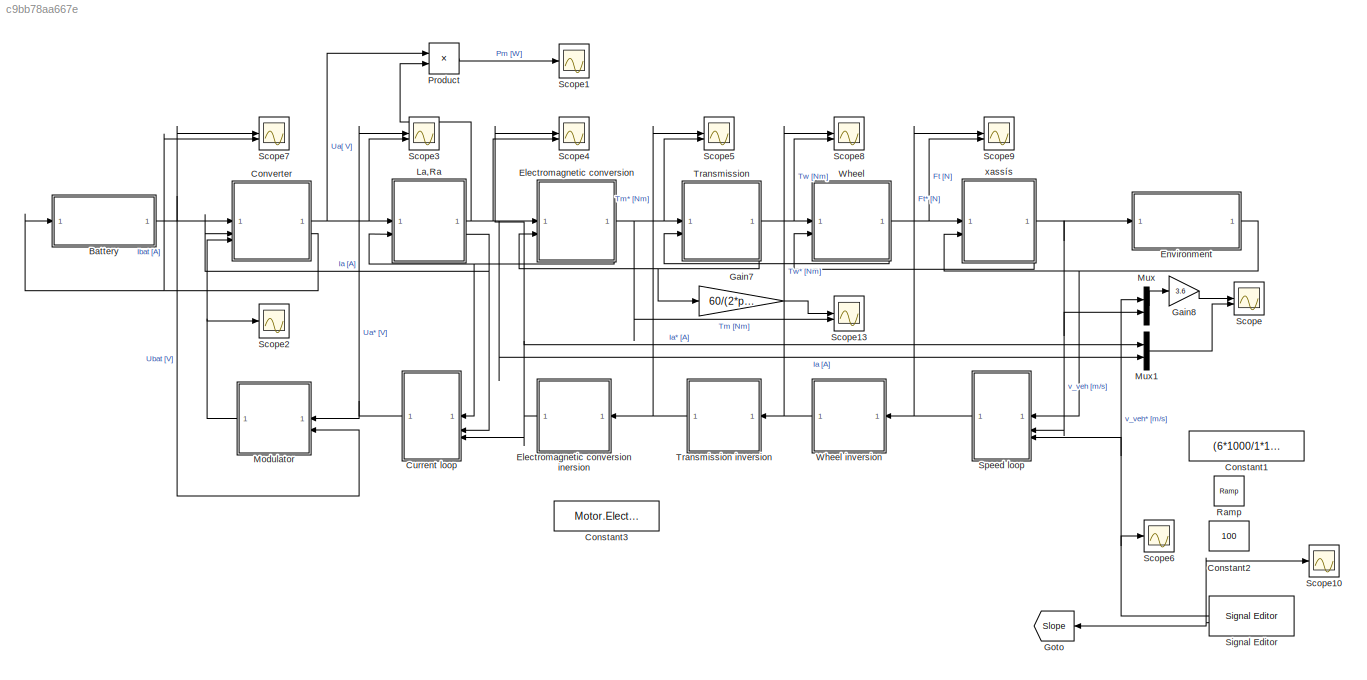
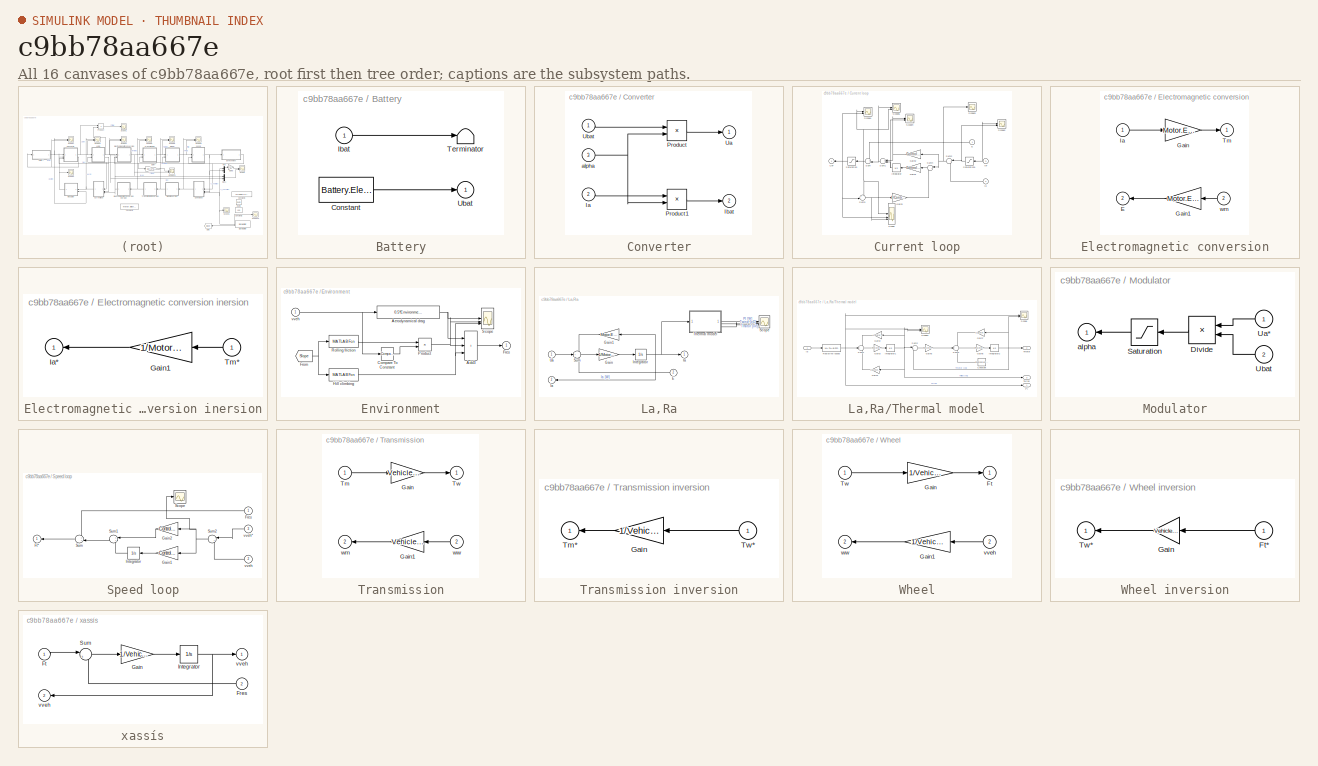
[diagram: thumbnail index - all 16 canvases of the model, root first then tree order]
MODEL mdl_c9bb78aa667e
KIND model
CONFIG AbsTol = auto
CONFIG EnableMultiTasking = on
CONFIG FixedStep = auto
CONFIG MaxStep = 1
CONFIG MinStep = auto
CONFIG RelTol = 1e-3
CONFIG SampleTimeConstraint = Unconstrained
CONFIG SolverName = ode45
CONFIG StartTime = 0.0
CONFIG StopTime = 10
BLOCK [SubSystem] Battery
  AncestorBlock = simulink/REM/SE
BLOCK [Constant] Battery/Constant
  Value = Battery.Electrical.Ubat
BLOCK [Inport] Battery/Ibat
BLOCK [Terminator] Battery/Terminator
BLOCK [Outport] Battery/Ubat
  InitialOutput = 0
  VectorParamsAs1DForOutWhenUnconnected = off
BLOCK [Constant] Constant1
  NameLocation = top
  Value = (6*1000/1*1/3600)
BLOCK [Constant] Constant2
  NameLocation = top
  Value = 100
BLOCK [Constant] Constant3
  NameLocation = top
  Value = Motor.Electrical.Imr
BLOCK [SubSystem] Converter
  AncestorBlock = simulink/REM/EC Elec
  NameLocation = top
BLOCK [Inport] Converter/Ia
  NameLocation = top
  Port = 2
BLOCK [Outport] Converter/Ibat
  InitialOutput = 0
  NameLocation = top
  Port = 2
  VectorParamsAs1DForOutWhenUnconnected = off
BLOCK [Product] Converter/Product
BLOCK [Product] Converter/Product1
BLOCK [Outport] Converter/Ua
  InitialOutput = 0
  VectorParamsAs1DForOutWhenUnconnected = off
BLOCK [Inport] Converter/Ubat
BLOCK [Inport] Converter/alpha
  Port = 3
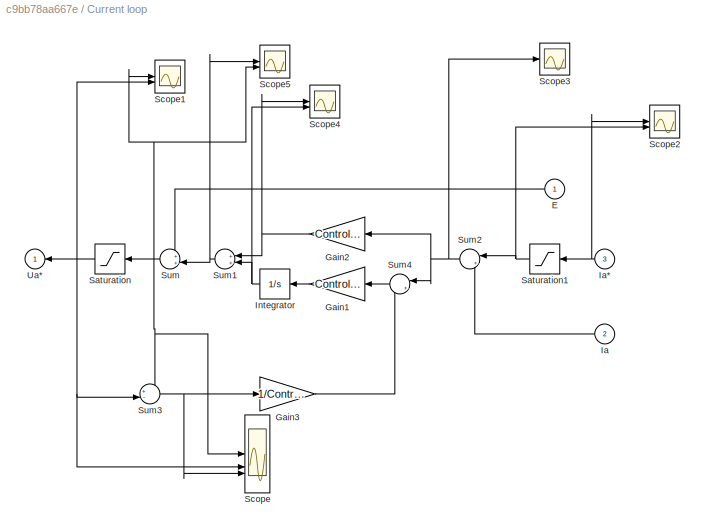
BLOCK [SubSystem] Current loop
  AncestorBlock = simulink/SMC/Asservissement\nCorrecteur IP
BLOCK [Inport] Current loop/E
  NameLocation = top
BLOCK [Gain] Current loop/Gain1
  Gain = Control.Current.Ki_i
  NameLocation = top
BLOCK [Gain] Current loop/Gain2
  Gain = Control.Current.Kp_i
  NameLocation = top
BLOCK [Gain] Current loop/Gain3
  Gain = 1/Control.Current.Kaw_i
BLOCK [Inport] Current loop/Ia
  NameLocation = top
  Port = 2
BLOCK [Inport] Current loop/Ia*
  Port = 3
BLOCK [Integrator] Current loop/Integrator
  NameLocation = top
BLOCK [Saturate] Current loop/Saturation
  LowerLimit = -Motor.Electrical.Umr
  NameLocation = top
  UpperLimit = Motor.Electrical.Umr
BLOCK [Saturate] Current loop/Saturation1
  LowerLimit = -Motor.Electrical.Imr
  NameLocation = top
  UpperLimit = Motor.Electrical.Imr
BLOCK [Scope] Current loop/Scope
  Floating = off
  NumInputPorts = 3
  ScopeSpecificationString = Simulink.scopes.TimeScopeBlockCfg('CurrentConfiguration', extmgr.ConfigurationSet(extmgr.Configuration('Core','General UI',true),extmgr.Configuration('Core','Source UI',true),extmgr.Configuration('Sources','WiredSimulink',true,'DataLoggingVariableName','ScopeData4'),extmgr.Configuration('Visuals','Time Domain',true,'SerializedDisplays',{struct('MinYLimReal','-4.53915','MaxYLimReal','40.66416','YLa...<+3112ch>
BLOCK [Scope] Current loop/Scope1
  Floating = off
  NumInputPorts = 2
  ScopeSpecificationString = Simulink.scopes.TimeScopeBlockCfg('CurrentConfiguration', extmgr.ConfigurationSet(extmgr.Configuration('Core','General UI',true),extmgr.Configuration('Core','Source UI',true),extmgr.Configuration('Sources','WiredSimulink',true,'DataLoggingVariableName','PI'),extmgr.Configuration('Visuals','Time Domain',true,'SerializedDisplays',{struct('MinYLimReal','-4.31781','MaxYLimReal','39.10087','YLabelReal'...<+1645ch>
BLOCK [Scope] Current loop/Scope2
  Floating = off
  NumInputPorts = 2
  ScopeSpecificationString = Simulink.scopes.TimeScopeBlockCfg('CurrentConfiguration', extmgr.ConfigurationSet(extmgr.Configuration('Core','General UI',true),extmgr.Configuration('Core','Source UI',true),extmgr.Configuration('Sources','WiredSimulink',true,'DataLoggingVariableName','ScopeData3'),extmgr.Configuration('Visuals','Time Domain',true,'SerializedDisplays',{struct('MinYLimReal','-69.86243','MaxYLimReal','103.72527','Y...<+1414ch>
BLOCK [Scope] Current loop/Scope3
  Floating = off
  NumInputPorts = 1
  ScopeSpecificationString = Simulink.scopes.TimeScopeBlockCfg('CurrentConfiguration', extmgr.ConfigurationSet(extmgr.Configuration('Core','General UI',true),extmgr.Configuration('Core','Source UI',true),extmgr.Configuration('Sources','WiredSimulink',true,'DataLoggingVariableName','ScopeData4'),extmgr.Configuration('Visuals','Time Domain',true,'SerializedDisplays',{struct('MinYLimReal','-21.80121','MaxYLimReal','88.64244','YL...<+1499ch>
BLOCK [Scope] Current loop/Scope4
  Floating = off
  NumInputPorts = 2
  ScopeSpecificationString = Simulink.scopes.TimeScopeBlockCfg('CurrentConfiguration', extmgr.ConfigurationSet(extmgr.Configuration('Core','General UI',true),extmgr.Configuration('Core','Source UI',true),extmgr.Configuration('Sources','WiredSimulink',true,'DataLoggingVariableName','ScopeData5'),extmgr.Configuration('Visuals','Time Domain',true,'SerializedDisplays',{struct('MinYLimReal','-3.11364','MaxYLimReal','12.65988','YLa...<+2274ch>
BLOCK [Scope] Current loop/Scope5
  Floating = off
  NumInputPorts = 2
  ScopeSpecificationString = Simulink.scopes.TimeScopeBlockCfg('CurrentConfiguration', extmgr.ConfigurationSet(extmgr.Configuration('Core','General UI',true),extmgr.Configuration('Core','Source UI',true),extmgr.Configuration('Sources','WiredSimulink',true,'DataLoggingVariableName','ScopeData6'),extmgr.Configuration('Visuals','Time Domain',true,'SerializedDisplays',{struct('MinYLimReal','-0.28319','MaxYLimReal','2.78924','YLab...<+2188ch>
BLOCK [Sum] Current loop/Sum
  Inputs = ++|
  NameLocation = top
BLOCK [Sum] Current loop/Sum1
  NameLocation = top
BLOCK [Sum] Current loop/Sum2
  Inputs = |+-
  NameLocation = top
BLOCK [Sum] Current loop/Sum3
  Inputs = +-|
BLOCK [Sum] Current loop/Sum4
  Inputs = |+-
  NameLocation = top
BLOCK [Outport] Current loop/Ua*
  InitialOutput = 0
  VectorParamsAs1DForOutWhenUnconnected = off
BLOCK [SubSystem] Electromagnetic conversion
  AncestorBlock = simulink/REM/EC EM
  NameLocation = top
BLOCK [SubSystem] Electromagnetic conversion inersion
  AncestorBlock = simulink/SMC/Inversion EC\navec mesure
BLOCK [Gain] Electromagnetic conversion inersion/Gain1
  Gain = 1/Motor.Electrical.kmotor
  NameLocation = top
BLOCK [Outport] Electromagnetic conversion inersion/Ia*
  InitialOutput = 0
  VectorParamsAs1DForOutWhenUnconnected = off
BLOCK [Inport] Electromagnetic conversion inersion/Tm*
BLOCK [Outport] Electromagnetic conversion/E
  InitialOutput = 0
  Port = 2
  VectorParamsAs1DForOutWhenUnconnected = off
BLOCK [Gain] Electromagnetic conversion/Gain
  Gain = Motor.Electrical.kmotor
BLOCK [Gain] Electromagnetic conversion/Gain1
  Gain = Motor.Electrical.kmotor
  NameLocation = top
BLOCK [Inport] Electromagnetic conversion/Ia
BLOCK [Outport] Electromagnetic conversion/Tm
  InitialOutput = 0
  VectorParamsAs1DForOutWhenUnconnected = off
BLOCK [Inport] Electromagnetic conversion/wm
  Port = 2
BLOCK [SubSystem] Environment
  AncestorBlock = simulink/REM/SE
BLOCK [Sum] Environment/Add3
  IconShape = rectangular
  Inputs = +++
BLOCK [Fcn] Environment/Aerodynamical drag
  Expr = 0.5*Environment.rho*Vehicle.Af*Vehicle.Cd*(u(1)-Environment.vair)^2
BLOCK [Reference] Environment/Compare To Constant  REF=simulink/Logic and Bit
Operations/Compare
To Constant
  SourceBlock = simulink/Logic and Bit\nOperations/Compare\nTo Constant
  SourceType = Compare To Constant
BLOCK [Outport] Environment/Fres
  InitialOutput = 0
  VectorParamsAs1DForOutWhenUnconnected = off
BLOCK [From] Environment/From
  GotoTag = Slope
  TagVisibility = global
BLOCK [MATLABFcn] Environment/Hill climbing
  MATLABFcn = Vehicle.mv*Environment.g*sin(atan(u(1)/100))
BLOCK [Product] Environment/Product
BLOCK [MATLABFcn] Environment/Rolling friction
  MATLABFcn = Vehicle.fr*Vehicle.mv*Environment.g*cos(atan(u(1)/100))
BLOCK [Scope] Environment/Scope
  Floating = off
  NumInputPorts = 3
  ScopeSpecificationString = Simulink.scopes.TimeScopeBlockCfg('CurrentConfiguration', extmgr.ConfigurationSet(extmgr.Configuration('Core','General UI',true),extmgr.Configuration('Core','Source UI',true),extmgr.Configuration('Sources','WiredSimulink',true,'DataLoggingVariableName','ScopeData2'),extmgr.Configuration('Visuals','Time Domain',true,'SerializedDisplays',{struct('MinYLimReal','-45.98437','MaxYLimReal','413.85938','Y...<+1413ch>
BLOCK [Inport] Environment/vveh
BLOCK [Gain] Gain7
  Gain = 60/(2*pi)
BLOCK [Gain] Gain8
  Gain = 3.6
BLOCK [Goto] Goto
  GotoTag = Slope
  NameLocation = top
  TagVisibility = global
BLOCK [SubSystem] La,Ra
  AncestorBlock = simulink/REM/EA
  NameLocation = top
BLOCK [Inport] La,Ra/E
  Port = 2
BLOCK [Gain] La,Ra/Gain
  Gain = 1/Motor.Electrical.La
BLOCK [Gain] La,Ra/Gain1
  Gain = Motor.Electrical.Ra
  NameLocation = top
BLOCK [Outport] La,Ra/Ia
  InitialOutput = 0
  Port = 2
  VectorParamsAs1DForOutWhenUnconnected = off
BLOCK [Outport] La,Ra/Ia 
  InitialOutput = 0
  VectorParamsAs1DForOutWhenUnconnected = off
BLOCK [Integrator] La,Ra/Integrator
BLOCK [Scope] La,Ra/Scope
  Floating = off
  NumInputPorts = 3
  ScopeSpecificationString = Simulink.scopes.TimeScopeBlockCfg('CurrentConfiguration', extmgr.ConfigurationSet(extmgr.Configuration('Core','General UI',true),extmgr.Configuration('Core','Source UI',true),extmgr.Configuration('Sources','WiredSimulink',true,'DataLoggingVariableName','ScopeData2'),extmgr.Configuration('Visuals','Time Domain',true,'SerializedDisplays',{struct('MinYLimReal','-2.11412','MaxYLimReal','19.02705','YLa...<+2328ch>
BLOCK [Sum] La,Ra/Sum
  Inputs = -+-
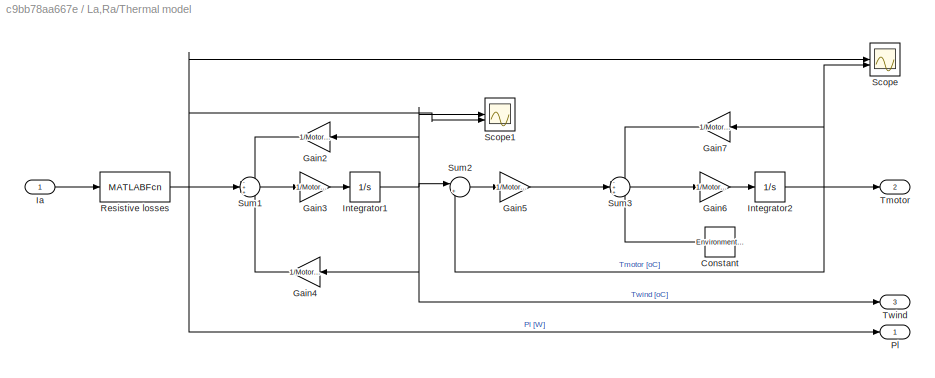
BLOCK [SubSystem] La,Ra/Thermal model
BLOCK [Constant] La,Ra/Thermal model/Constant
  NameLocation = top
  Value = Environment.Tamb/Motor.Thermal.R_thcase_amb
BLOCK [Gain] La,Ra/Thermal model/Gain2
  Gain = 1/Motor.Thermal.R_thwind_case
  NameLocation = top
BLOCK [Gain] La,Ra/Thermal model/Gain3
  Gain = 1/Motor.Thermal.C_thwind
BLOCK [Gain] La,Ra/Thermal model/Gain4
  Gain = 1/Motor.Thermal.R_thwind_case
  NameLocation = top
BLOCK [Gain] La,Ra/Thermal model/Gain5
  Gain = 1/Motor.Thermal.R_thwind_case
BLOCK [Gain] La,Ra/Thermal model/Gain6
  Gain = 1/Motor.Thermal.C_thcase
BLOCK [Gain] La,Ra/Thermal model/Gain7
  Gain = 1/Motor.Thermal.R_thcase_amb
  NameLocation = top
BLOCK [Inport] La,Ra/Thermal model/Ia
BLOCK [Integrator] La,Ra/Thermal model/Integrator1
BLOCK [Integrator] La,Ra/Thermal model/Integrator2
BLOCK [Outport] La,Ra/Thermal model/Pl 
BLOCK [MATLABFcn] La,Ra/Thermal model/Resistive losses
  MATLABFcn = Motor.Electrical.Ra*u(1)^2
BLOCK [Scope] La,Ra/Thermal model/Scope
  Floating = off
  NumInputPorts = 2
  ScopeSpecificationString = Simulink.scopes.TimeScopeBlockCfg('CurrentConfiguration', extmgr.ConfigurationSet(extmgr.Configuration('Core','General UI',true),extmgr.Configuration('Core','Source UI',true),extmgr.Configuration('Sources','WiredSimulink',true,'DataLoggingVariableName','ScopeData2'),extmgr.Configuration('Visuals','Time Domain',true,'SerializedDisplays',{struct('MinYLimReal','-2.11412','MaxYLimReal','19.02705','YLa...<+2165ch>
BLOCK [Scope] La,Ra/Thermal model/Scope1
  Floating = off
  NumInputPorts = 2
  ScopeSpecificationString = Simulink.scopes.TimeScopeBlockCfg('CurrentConfiguration', extmgr.ConfigurationSet(extmgr.Configuration('Core','General UI',true),extmgr.Configuration('Core','Source UI',true),extmgr.Configuration('Sources','WiredSimulink',true,'DataLoggingVariableName','ScopeData1'),extmgr.Configuration('Visuals','Time Domain',true,'SerializedDisplays',{struct('MinYLimReal','-0.15214','MaxYLimReal','1.36926','YLab...<+1966ch>
BLOCK [Sum] La,Ra/Thermal model/Sum1
  Inputs = -++
BLOCK [Sum] La,Ra/Thermal model/Sum2
  Inputs = |+-
BLOCK [Sum] La,Ra/Thermal model/Sum3
  Inputs = -++
BLOCK [Outport] La,Ra/Thermal model/Tmotor
  Port = 2
BLOCK [Outport] La,Ra/Thermal model/Twind
  Port = 3
BLOCK [Inport] La,Ra/Ua
BLOCK [SubSystem] Modulator
  AncestorBlock = simulink/SMC/Inversion EC\navec mesure
BLOCK [Product] Modulator/Divide
  Inputs = */
  NameLocation = top
BLOCK [Saturate] Modulator/Saturation
  LowerLimit = -1
  NameLocation = top
  UpperLimit = 1
BLOCK [Inport] Modulator/Ua*
  NameLocation = top
BLOCK [Inport] Modulator/Ubat
  NameLocation = top
  Port = 2
BLOCK [Outport] Modulator/alpha
  InitialOutput = 0
  VectorParamsAs1DForOutWhenUnconnected = off
BLOCK [Mux] Mux
  DisplayOption = bar
  Inputs = 2
BLOCK [Mux] Mux1
  DisplayOption = bar
  Inputs = 2
BLOCK [Product] Product
BLOCK [Reference] Ramp  REF=simulink/Sources/Ramp
  NameLocation = top
  SourceBlock = simulink/Sources/Ramp
  SourceType = Ramp
BLOCK [Scope] Scope
  Floating = off
  NumInputPorts = 2
  ScopeSpecificationString = Simulink.scopes.TimeScopeBlockCfg('CurrentConfiguration', extmgr.ConfigurationSet(extmgr.Configuration('Core','General UI',true),extmgr.Configuration('Core','Source UI',true),extmgr.Configuration('Sources','WiredSimulink',true,'DataLoggingVariableName','SpeedCurrent','DataLoggingDecimation','1','DataLoggingDecimateData',true),extmgr.Configuration('Visuals','Time Domain',true,'SerializedDisplays',{...<+2634ch>
BLOCK [Scope] Scope1
  Floating = off
  NumInputPorts = 1
  ScopeSpecificationString = Simulink.scopes.TimeScopeBlockCfg('CurrentConfiguration', extmgr.ConfigurationSet(extmgr.Configuration('Core','General UI',true),extmgr.Configuration('Core','Source UI',true),extmgr.Configuration('Sources','WiredSimulink',true,'DataLoggingVariableName','ScopeData1','DataLoggingSaveFormat','StructureWithTime','DataLoggingDecimation','1','DataLoggingDecimateData',true),extmgr.Configuration('Visuals'...<+1670ch>
BLOCK [Scope] Scope10
  Floating = off
  NumInputPorts = 1
  ScopeSpecificationString = Simulink.scopes.TimeScopeBlockCfg('CurrentConfiguration', extmgr.ConfigurationSet(extmgr.Configuration('Core','General UI',true),extmgr.Configuration('Core','Source UI',true),extmgr.Configuration('Sources','WiredSimulink',true,'DataLoggingVariableName','ScopeData2'),extmgr.Configuration('Visuals','Time Domain',true,'SerializedDisplays',{struct('MinYLimReal','-0.625','MaxYLimReal','5.625','YLabelRe...<+1366ch>
BLOCK [Scope] Scope13
  Floating = off
  NumInputPorts = 2
  ScopeSpecificationString = Simulink.scopes.TimeScopeBlockCfg('CurrentConfiguration', extmgr.ConfigurationSet(extmgr.Configuration('Core','General UI',true),extmgr.Configuration('Core','Source UI',true),extmgr.Configuration('Sources','WiredSimulink',true,'DataLoggingVariableName','ScopeData1','DataLoggingSaveFormat','StructureWithTime','DataLoggingDecimation','1','DataLoggingDecimateData',true),extmgr.Configuration('Visuals'...<+2372ch>
BLOCK [Scope] Scope2
  Floating = off
  NumInputPorts = 1
  ScopeSpecificationString = Simulink.scopes.TimeScopeBlockCfg('CurrentConfiguration', extmgr.ConfigurationSet(extmgr.Configuration('Core','General UI',true),extmgr.Configuration('Core','Source UI',true),extmgr.Configuration('Sources','WiredSimulink',true,'DataLoggingVariableName','ScopeData9','DataLoggingSaveFormat','StructureWithTime','DataLoggingDecimation','1','DataLoggingDecimateData',true),extmgr.Configuration('Visuals'...<+1669ch>
BLOCK [Scope] Scope3
  Floating = off
  NumInputPorts = 2
  ScopeSpecificationString = Simulink.scopes.TimeScopeBlockCfg('CurrentConfiguration', extmgr.ConfigurationSet(extmgr.Configuration('Core','General UI',true),extmgr.Configuration('Core','Source UI',true),extmgr.Configuration('Sources','WiredSimulink',true,'DataLoggingVariableName','ScopeData10','DataLoggingSaveFormat','StructureWithTime','DataLoggingDecimation','1','DataLoggingDecimateData',true),extmgr.Configuration('Visuals...<+1800ch>
BLOCK [Scope] Scope4
  Floating = off
  NumInputPorts = 2
  ScopeSpecificationString = Simulink.scopes.TimeScopeBlockCfg('CurrentConfiguration', extmgr.ConfigurationSet(extmgr.Configuration('Core','General UI',true),extmgr.Configuration('Core','Source UI',true),extmgr.Configuration('Sources','WiredSimulink',true,'DataLoggingVariableName','ScopeData1','DataLoggingSaveFormat','StructureWithTime','DataLoggingDecimation','1','DataLoggingDecimateData',true),extmgr.Configuration('Visuals'...<+1801ch>
BLOCK [Scope] Scope5
  Floating = off
  NumInputPorts = 2
  ScopeSpecificationString = Simulink.scopes.TimeScopeBlockCfg('CurrentConfiguration', extmgr.ConfigurationSet(extmgr.Configuration('Core','General UI',true),extmgr.Configuration('Core','Source UI',true),extmgr.Configuration('Sources','WiredSimulink',true,'DataLoggingVariableName','ScopeData2','DataLoggingSaveFormat','StructureWithTime','DataLoggingDecimation','1','DataLoggingDecimateData',true),extmgr.Configuration('Visuals'...<+1577ch>
BLOCK [Scope] Scope6
  Floating = off
  NumInputPorts = 1
  ScopeSpecificationString = Simulink.scopes.TimeScopeBlockCfg('CurrentConfiguration', extmgr.ConfigurationSet(extmgr.Configuration('Core','General UI',true),extmgr.Configuration('Core','Source UI',true),extmgr.Configuration('Sources','WiredSimulink',true,'DataLoggingVariableName','ScopeData1'),extmgr.Configuration('Visuals','Time Domain',true,'SerializedDisplays',{struct('MinYLimReal','-0.20833','MaxYLimReal','1.875','YLabel...<+1363ch>
BLOCK [Scope] Scope7
  Floating = off
  NumInputPorts = 2
  ScopeSpecificationString = Simulink.scopes.TimeScopeBlockCfg('CurrentConfiguration', extmgr.ConfigurationSet(extmgr.Configuration('Core','General UI',true),extmgr.Configuration('Core','Source UI',true),extmgr.Configuration('Sources','WiredSimulink',true,'DataLoggingVariableName','ScopeData1','DataLoggingSaveFormat','StructureWithTime','DataLoggingDecimation','1','DataLoggingDecimateData',true),extmgr.Configuration('Visuals'...<+2385ch>
BLOCK [Scope] Scope8
  Floating = off
  NumInputPorts = 2
  ScopeSpecificationString = Simulink.scopes.TimeScopeBlockCfg('CurrentConfiguration', extmgr.ConfigurationSet(extmgr.Configuration('Core','General UI',true),extmgr.Configuration('Core','Source UI',true),extmgr.Configuration('Sources','WiredSimulink',true,'DataLoggingVariableName','ScopeData1','DataLoggingSaveFormat','StructureWithTime','DataLoggingDecimation','1','DataLoggingDecimateData',true),extmgr.Configuration('Visuals'...<+2454ch>
BLOCK [Scope] Scope9
  Floating = off
  NumInputPorts = 2
  ScopeSpecificationString = Simulink.scopes.TimeScopeBlockCfg('CurrentConfiguration', extmgr.ConfigurationSet(extmgr.Configuration('Core','General UI',true),extmgr.Configuration('Core','Source UI',true),extmgr.Configuration('Sources','WiredSimulink',true,'DataLoggingVariableName','ScopeData2','DataLoggingSaveFormat','StructureWithTime','DataLoggingDecimation','1','DataLoggingDecimateData',true),extmgr.Configuration('Visuals'...<+1585ch>
BLOCK [Reference] Signal Editor  REF=SignalEditorBlockLib/Signal Editor
  LibrarySourceBlock = simulink/Sources/Signal Editor
  NameLocation = top
  SourceBlock = SignalEditorBlockLib/Signal Editor
  SourceType = SignalEditor
  UserDataPersistent = on
BLOCK [SubSystem] Speed loop
  AncestorBlock = simulink/SMC/Asservissement\nCorrecteur IP
BLOCK [Inport] Speed loop/Fres
  NameLocation = top
BLOCK [Outport] Speed loop/Ft*
  InitialOutput = 0
  VectorParamsAs1DForOutWhenUnconnected = off
BLOCK [Gain] Speed loop/Gain1
  Gain = Control.Speed.Ki_v
  NameLocation = top
BLOCK [Gain] Speed loop/Gain2
  Gain = Control.Speed.Kp_v
  NameLocation = top
BLOCK [Integrator] Speed loop/Integrator
  NameLocation = top
BLOCK [Scope] Speed loop/Scope
  Floating = off
  NumInputPorts = 1
  ScopeSpecificationString = Simulink.scopes.TimeScopeBlockCfg('CurrentConfiguration', extmgr.ConfigurationSet(extmgr.Configuration('Core','General UI',true),extmgr.Configuration('Core','Source UI',true),extmgr.Configuration('Sources','WiredSimulink',true,'DataLoggingVariableName','ScopeData1'),extmgr.Configuration('Visuals','Time Domain',true,'SerializedDisplays',{struct('MinYLimReal','-2.80257','MaxYLimReal','18.89949','YLa...<+1495ch>
BLOCK [Sum] Speed loop/Sum
  Inputs = ++|
  NameLocation = top
BLOCK [Sum] Speed loop/Sum1
  NameLocation = top
BLOCK [Sum] Speed loop/Sum2
  Inputs = |+-
  NameLocation = top
BLOCK [Inport] Speed loop/vveh
  NameLocation = top
  Port = 2
BLOCK [Inport] Speed loop/vveh*
  Port = 3
BLOCK [SubSystem] Transmission
  AncestorBlock = simulink/REM/EC Elec
  NameLocation = top
BLOCK [SubSystem] Transmission inversion
  AncestorBlock = simulink/SMC/Inversion EC\navec mesure
BLOCK [Gain] Transmission inversion/Gain
  Gain = 1/Vehicle.kred
  NameLocation = top
BLOCK [Outport] Transmission inversion/Tm*
  InitialOutput = 0
  VectorParamsAs1DForOutWhenUnconnected = off
BLOCK [Inport] Transmission inversion/Tw*
  NameLocation = top
BLOCK [Gain] Transmission/Gain
  Gain = Vehicle.kred
BLOCK [Gain] Transmission/Gain1
  Gain = Vehicle.kred
  NameLocation = top
BLOCK [Inport] Transmission/Tm
BLOCK [Outport] Transmission/Tw
  InitialOutput = 0
  VectorParamsAs1DForOutWhenUnconnected = off
BLOCK [Outport] Transmission/wm
  InitialOutput = 0
  Port = 2
  VectorParamsAs1DForOutWhenUnconnected = off
BLOCK [Inport] Transmission/ww
  Port = 2
BLOCK [SubSystem] Wheel
  AncestorBlock = simulink/REM/EC Elec
  NameLocation = top
BLOCK [SubSystem] Wheel inversion
  AncestorBlock = simulink/SMC/Inversion EC\navec mesure
BLOCK [Inport] Wheel inversion/Ft*
  NameLocation = top
BLOCK [Gain] Wheel inversion/Gain
  Gain = Vehicle.rw
  NameLocation = top
BLOCK [Outport] Wheel inversion/Tw*
  InitialOutput = 0
  VectorParamsAs1DForOutWhenUnconnected = off
BLOCK [Outport] Wheel/Ft
  InitialOutput = 0
  VectorParamsAs1DForOutWhenUnconnected = off
BLOCK [Gain] Wheel/Gain
  Gain = 1/Vehicle.rw
BLOCK [Gain] Wheel/Gain1
  Gain = 1/Vehicle.rw
  NameLocation = top
BLOCK [Inport] Wheel/Tw
BLOCK [Inport] Wheel/vveh
  Port = 2
BLOCK [Outport] Wheel/ww
  InitialOutput = 0
  Port = 2
  VectorParamsAs1DForOutWhenUnconnected = off
BLOCK [SubSystem] xassís
  AncestorBlock = simulink/REM/EA
  NameLocation = top
BLOCK [Inport] xassís/Fres
  Port = 2
BLOCK [Inport] xassís/Ft
BLOCK [Gain] xassís/Gain
  Gain = 1/Vehicle.mv
BLOCK [Integrator] xassís/Integrator
BLOCK [Sum] xassís/Sum
  Inputs = |+-
BLOCK [Outport] xassís/vveh
  InitialOutput = 0
  VectorParamsAs1DForOutWhenUnconnected = off
BLOCK [Outport] xassís/vveh 
  InitialOutput = 0
  Port = 2
  VectorParamsAs1DForOutWhenUnconnected = off
NET Battery:1 -> Converter:1, Modulator:2, Scope7:1
NET Converter:1 -> La,Ra:1, Product:1, Scope3:2
NET Converter:2 -> Battery:1, Scope7:2
NET Current loop:1 -> Modulator:1, Scope3:1
NET Electromagnetic conversion inersion:1 -> Current loop:3, Mux1:1, Scope4:1
NET Electromagnetic conversion:1 -> Scope13:2, Scope5:2, Transmission:1
NET Electromagnetic conversion:2 -> Current loop:1, La,Ra:2
NET Environment:1 -> Speed loop:1, xassís:2
LINE Gain7:1 -> Scope13:1
LINE Gain8:1 -> Scope:1
NET La,Ra:1 -> Electromagnetic conversion:1, Mux1:2, Product:2, Scope4:2
NET La,Ra:2 -> Converter:2, Current loop:2
NET Modulator:1 -> Converter:3, Scope2:1
LINE Mux1:1 -> Scope:2
LINE Mux:1 -> Gain8:1
LINE Product:1 -> Scope1:1
NET Signal Editor:1 -> Mux:1, Scope6:1, Speed loop:3
NET Signal Editor:2 -> Goto:1, Scope10:1
NET Speed loop:1 -> Scope9:1, Wheel inversion:1
NET Transmission inversion:1 -> Electromagnetic conversion inersion:1, Scope5:1
NET Transmission:1 -> Scope8:2, Wheel:1
NET Transmission:2 -> Electromagnetic conversion:2, Gain7:1
NET Wheel inversion:1 -> Scope8:1, Transmission inversion:1
NET Wheel:1 -> Scope9:2, xassís:1
LINE Wheel:2 -> Transmission:2
NET xassís:1 -> Environment:1, Mux:2, Speed loop:2
LINE xassís:2 -> Wheel:2
note: NET lines group one-source signal fan-out (src -> all destinations, sorted); 1:1 wires keep LINE
